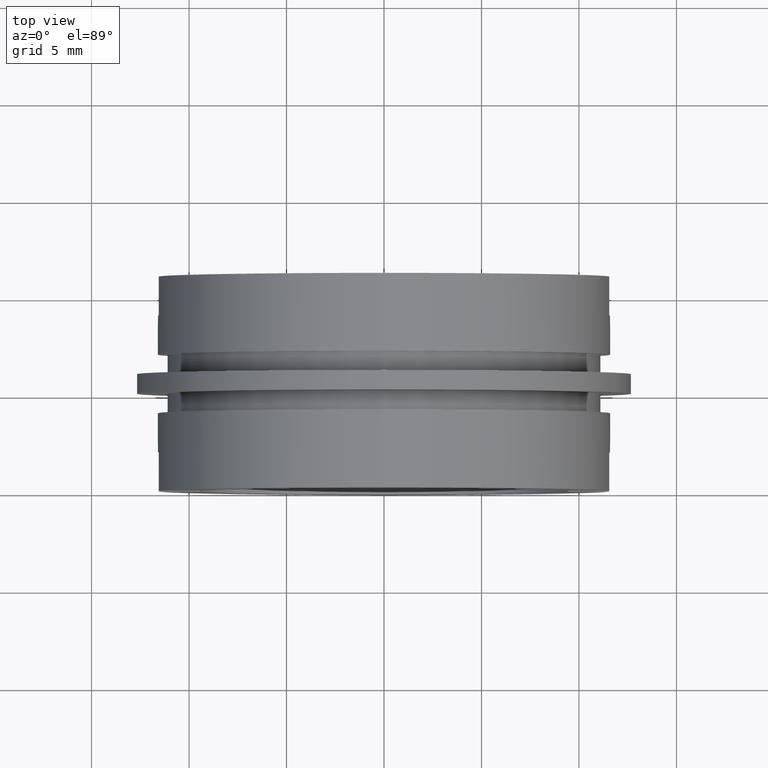
[diagram: clean part render]
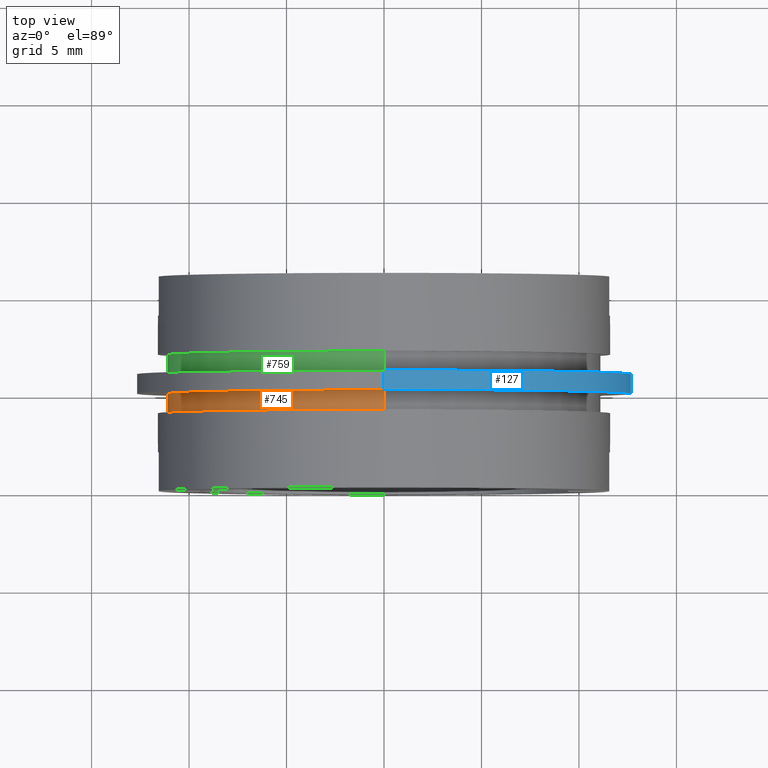
[diagram: same view with three faces highlighted in distinct colors, each labeled with its STEP entity id]
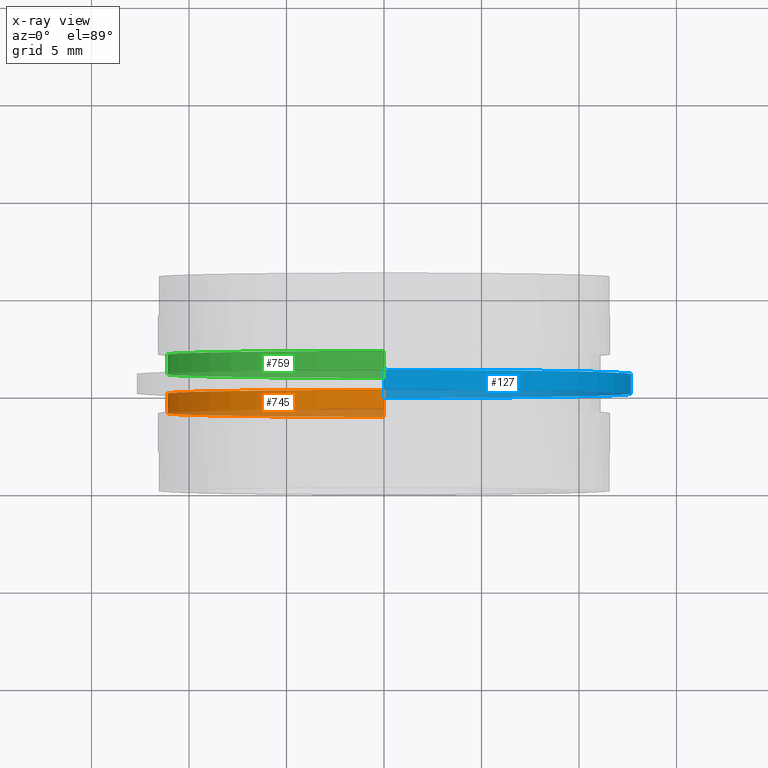
[diagram: x-ray of the same camera — body ghosted, the three highlighted faces saturated]
A machine part, top view with three faces highlighted in distinct colors.
The next image is the same camera in x-ray (body ghosted, the three faces saturated) — at least one of them is partly hidden behind the body in this view.
Their STEP definitions:

[orange] entity #745 — the highlighted cylindrical surface (partial cylindrical patch) has radius 11.1 mm, axis along (-0, 1, -0).
#35 = AXIS2_PLACEMENT_3D ( 'NONE', #533, #1051, #438 ) ;
#74 = EDGE_CURVE ( 'NONE', #806, #981, #578, .T. ) ;
#161 = CARTESIAN_POINT ( 'NONE',  ( 1.359357947053562000E-015, 22.67749945107591400, -11.09999999999999800 ) ) ;
#167 = DIRECTION ( 'NONE',  ( -0.0000000000000000000, 1.000000000000000000, -0.0000000000000000000 ) ) ;
#285 = CARTESIAN_POINT ( 'NONE',  ( 0.0000000000000000000, 5.000000000000000900, 11.09999999999999800 ) ) ;
#294 = CYLINDRICAL_SURFACE ( 'NONE', #925, 11.09999999999999800 ) ;
#297 = ORIENTED_EDGE ( 'NONE', *, *, #308, .T. ) ;
#308 = EDGE_CURVE ( 'NONE', #854, #567, #1142, .T. ) ;
#333 = CARTESIAN_POINT ( 'NONE',  ( 0.0000000000000000000, 4.000000000000000000, 11.09999999999999800 ) ) ;
#337 = VECTOR ( 'NONE', #346, 1000.000000000000000 ) ;
#346 = DIRECTION ( 'NONE',  ( -0.0000000000000000000, 1.000000000000000000, -0.0000000000000000000 ) ) ;
#434 = CARTESIAN_POINT ( 'NONE',  ( 0.0000000000000000000, 4.000000000000000000, 0.0000000000000000000 ) ) ;
#438 = DIRECTION ( 'NONE',  ( 0.0000000000000000000, 0.0000000000000000000, 1.000000000000000000 ) ) ;
#439 = CIRCLE ( 'NONE', #35, 11.09999999999999800 ) ;
#453 = ORIENTED_EDGE ( 'NONE', *, *, #74, .F. ) ;
#484 = CARTESIAN_POINT ( 'NONE',  ( 0.0000000000000000000, 22.67749945107591400, 11.09999999999999800 ) ) ;
#500 = CARTESIAN_POINT ( 'NONE',  ( 1.359357947053562000E-015, 4.000000000000000000, -11.09999999999999800 ) ) ;
#508 = DIRECTION ( 'NONE',  ( 0.0000000000000000000, 0.0000000000000000000, 1.000000000000000000 ) ) ;
#533 = CARTESIAN_POINT ( 'NONE',  ( 0.0000000000000000000, 5.000000000000000900, 0.0000000000000000000 ) ) ;
#566 = ORIENTED_EDGE ( 'NONE', *, *, #890, .T. ) ;
#567 = VERTEX_POINT ( 'NONE', #285 ) ;
#578 = LINE ( 'NONE', #161, #337 ) ;
#599 = EDGE_CURVE ( 'NONE', #981, #567, #439, .T. ) ;
#601 = CARTESIAN_POINT ( 'NONE',  ( 0.0000000000000000000, 22.67749945107591400, 0.0000000000000000000 ) ) ;
#657 = CIRCLE ( 'NONE', #850, 11.09999999999999800 ) ;
#733 = VECTOR ( 'NONE', #1017, 1000.000000000000000 ) ;
#745 = ADVANCED_FACE ( 'NONE', ( #1002 ), #294, .T. ) ;
#806 = VERTEX_POINT ( 'NONE', #500 ) ;
#850 = AXIS2_PLACEMENT_3D ( 'NONE', #434, #167, #873 ) ;
#854 = VERTEX_POINT ( 'NONE', #333 ) ;
#863 = DIRECTION ( 'NONE',  ( -0.0000000000000000000, 1.000000000000000000, -0.0000000000000000000 ) ) ;
#873 = DIRECTION ( 'NONE',  ( 0.0000000000000000000, 0.0000000000000000000, 1.000000000000000000 ) ) ;
#890 = EDGE_CURVE ( 'NONE', #806, #854, #657, .T. ) ;
#925 = AXIS2_PLACEMENT_3D ( 'NONE', #601, #863, #508 ) ;
#959 = CARTESIAN_POINT ( 'NONE',  ( 1.359357947053562000E-015, 5.000000000000000900, -11.09999999999999800 ) ) ;
#975 = EDGE_LOOP ( 'NONE', ( #453, #566, #297, #1131 ) ) ;
#981 = VERTEX_POINT ( 'NONE', #959 ) ;
#1002 = FACE_OUTER_BOUND ( 'NONE', #975, .T. ) ;
#1017 = DIRECTION ( 'NONE',  ( -0.0000000000000000000, 1.000000000000000000, -0.0000000000000000000 ) ) ;
#1051 = DIRECTION ( 'NONE',  ( -0.0000000000000000000, 1.000000000000000000, -0.0000000000000000000 ) ) ;
#1131 = ORIENTED_EDGE ( 'NONE', *, *, #599, .F. ) ;
#1142 = LINE ( 'NONE', #484, #733 ) ;

[blue] entity #127 — the highlighted cylindrical surface (partial cylindrical patch) has radius 12.7 mm, axis along (-0, 1, -0).
#14 = AXIS2_PLACEMENT_3D ( 'NONE', #586, #1104, #495 ) ;
#48 = VERTEX_POINT ( 'NONE', #878 ) ;
#80 = LINE ( 'NONE', #713, #763 ) ;
#127 = ADVANCED_FACE ( 'NONE', ( #555 ), #989, .T. ) ;
#278 = ORIENTED_EDGE ( 'NONE', *, *, #379, .T. ) ;
#322 = CIRCLE ( 'NONE', #14, 12.69999999999999900 ) ;
#328 = CARTESIAN_POINT ( 'NONE',  ( 0.0000000000000000000, 5.000000000000000900, 12.69999999999999900 ) ) ;
#379 = EDGE_CURVE ( 'NONE', #48, #580, #881, .T. ) ;
#407 = CARTESIAN_POINT ( 'NONE',  ( 0.0000000000000000000, 5.999999999999998200, 12.69999999999999900 ) ) ;
#447 = DIRECTION ( 'NONE',  ( 0.0000000000000000000, 0.0000000000000000000, 1.000000000000000000 ) ) ;
#455 = DIRECTION ( 'NONE',  ( -0.0000000000000000000, 1.000000000000000000, -0.0000000000000000000 ) ) ;
#456 = EDGE_CURVE ( 'NONE', #1071, #580, #943, .T. ) ;
#466 = DIRECTION ( 'NONE',  ( 0.0000000000000000000, 0.0000000000000000000, 1.000000000000000000 ) ) ;
#495 = DIRECTION ( 'NONE',  ( 0.0000000000000000000, 0.0000000000000000000, 1.000000000000000000 ) ) ;
#555 = FACE_OUTER_BOUND ( 'NONE', #658, .T. ) ;
#562 = CARTESIAN_POINT ( 'NONE',  ( 0.0000000000000000000, 5.999999999999998200, 0.0000000000000000000 ) ) ;
#575 = EDGE_CURVE ( 'NONE', #994, #1071, #80, .T. ) ;
#580 = VERTEX_POINT ( 'NONE', #971 ) ;
#586 = CARTESIAN_POINT ( 'NONE',  ( 0.0000000000000000000, 5.000000000000000900, 0.0000000000000000000 ) ) ;
#609 = ORIENTED_EDGE ( 'NONE', *, *, #797, .T. ) ;
#627 = DIRECTION ( 'NONE',  ( -0.0000000000000000000, 1.000000000000000000, -0.0000000000000000000 ) ) ;
#658 = EDGE_LOOP ( 'NONE', ( #609, #278, #676, #963 ) ) ;
#663 = AXIS2_PLACEMENT_3D ( 'NONE', #977, #455, #447 ) ;
#676 = ORIENTED_EDGE ( 'NONE', *, *, #456, .F. ) ;
#713 = CARTESIAN_POINT ( 'NONE',  ( 0.0000000000000000000, 22.67749945107591400, 12.69999999999999900 ) ) ;
#763 = VECTOR ( 'NONE', #627, 1000.000000000000000 ) ;
#797 = EDGE_CURVE ( 'NONE', #994, #48, #322, .T. ) ;
#820 = AXIS2_PLACEMENT_3D ( 'NONE', #562, #1075, #466 ) ;
#878 = CARTESIAN_POINT ( 'NONE',  ( 1.555301434917138400E-015, 5.000000000000000900, -12.69999999999999900 ) ) ;
#881 = LINE ( 'NONE', #918, #1080 ) ;
#918 = CARTESIAN_POINT ( 'NONE',  ( 1.555301434917138400E-015, 22.67749945107591400, -12.69999999999999900 ) ) ;
#943 = CIRCLE ( 'NONE', #820, 12.69999999999999900 ) ;
#963 = ORIENTED_EDGE ( 'NONE', *, *, #575, .F. ) ;
#971 = CARTESIAN_POINT ( 'NONE',  ( 1.555301434917138400E-015, 5.999999999999998200, -12.69999999999999900 ) ) ;
#977 = CARTESIAN_POINT ( 'NONE',  ( 0.0000000000000000000, 22.67749945107591400, 0.0000000000000000000 ) ) ;
#989 = CYLINDRICAL_SURFACE ( 'NONE', #663, 12.69999999999999900 ) ;
#994 = VERTEX_POINT ( 'NONE', #328 ) ;
#1071 = VERTEX_POINT ( 'NONE', #407 ) ;
#1075 = DIRECTION ( 'NONE',  ( -0.0000000000000000000, 1.000000000000000000, -0.0000000000000000000 ) ) ;
#1080 = VECTOR ( 'NONE', #1092, 1000.000000000000000 ) ;
#1092 = DIRECTION ( 'NONE',  ( -0.0000000000000000000, 1.000000000000000000, -0.0000000000000000000 ) ) ;
#1104 = DIRECTION ( 'NONE',  ( -0.0000000000000000000, 1.000000000000000000, -0.0000000000000000000 ) ) ;

[green] entity #759 — the highlighted cylindrical surface (partial cylindrical patch) has radius 11.1 mm, axis along (-0, 1, -0).
#47 = ORIENTED_EDGE ( 'NONE', *, *, #251, .F. ) ;
#67 = DIRECTION ( 'NONE',  ( -0.0000000000000000000, 1.000000000000000000, -0.0000000000000000000 ) ) ;
#75 = DIRECTION ( 'NONE',  ( 0.0000000000000000000, 0.0000000000000000000, 1.000000000000000000 ) ) ;
#84 = AXIS2_PLACEMENT_3D ( 'NONE', #320, #502, #410 ) ;
#87 = CARTESIAN_POINT ( 'NONE',  ( 0.0000000000000000000, 5.999999999999998200, 11.09999999999999800 ) ) ;
#91 = EDGE_CURVE ( 'NONE', #611, #286, #1043, .T. ) ;
#92 = VECTOR ( 'NONE', #67, 1000.000000000000000 ) ;
#95 = VERTEX_POINT ( 'NONE', #87 ) ;
#106 = AXIS2_PLACEMENT_3D ( 'NONE', #212, #756, #124 ) ;
#123 = AXIS2_PLACEMENT_3D ( 'NONE', #430, #1048, #75 ) ;
#124 = DIRECTION ( 'NONE',  ( 0.0000000000000000000, 0.0000000000000000000, 1.000000000000000000 ) ) ;
#194 = ORIENTED_EDGE ( 'NONE', *, *, #730, .T. ) ;
#212 = CARTESIAN_POINT ( 'NONE',  ( 0.0000000000000000000, 5.999999999999998200, 0.0000000000000000000 ) ) ;
#223 = LINE ( 'NONE', #671, #905 ) ;
#226 = CIRCLE ( 'NONE', #106, 11.09999999999999800 ) ;
#237 = CARTESIAN_POINT ( 'NONE',  ( 1.359357947053562000E-015, 5.999999999999998200, -11.09999999999999800 ) ) ;
#251 = EDGE_CURVE ( 'NONE', #827, #611, #223, .T. ) ;
#269 = CYLINDRICAL_SURFACE ( 'NONE', #84, 11.09999999999999800 ) ;
#286 = VERTEX_POINT ( 'NONE', #1102 ) ;
#288 = ORIENTED_EDGE ( 'NONE', *, *, #325, .T. ) ;
#320 = CARTESIAN_POINT ( 'NONE',  ( 0.0000000000000000000, 22.67749945107591400, 0.0000000000000000000 ) ) ;
#325 = EDGE_CURVE ( 'NONE', #827, #95, #226, .T. ) ;
#381 = ORIENTED_EDGE ( 'NONE', *, *, #91, .F. ) ;
#410 = DIRECTION ( 'NONE',  ( 0.0000000000000000000, 0.0000000000000000000, 1.000000000000000000 ) ) ;
#430 = CARTESIAN_POINT ( 'NONE',  ( 0.0000000000000000000, 6.999999999999999100, 0.0000000000000000000 ) ) ;
#502 = DIRECTION ( 'NONE',  ( -0.0000000000000000000, 1.000000000000000000, -0.0000000000000000000 ) ) ;
#611 = VERTEX_POINT ( 'NONE', #620 ) ;
#620 = CARTESIAN_POINT ( 'NONE',  ( 1.359357947053562000E-015, 6.999999999999999100, -11.09999999999999800 ) ) ;
#671 = CARTESIAN_POINT ( 'NONE',  ( 1.359357947053562000E-015, 22.67749945107591400, -11.09999999999999800 ) ) ;
#678 = DIRECTION ( 'NONE',  ( -0.0000000000000000000, 1.000000000000000000, -0.0000000000000000000 ) ) ;
#684 = CARTESIAN_POINT ( 'NONE',  ( 0.0000000000000000000, 22.67749945107591400, 11.09999999999999800 ) ) ;
#730 = EDGE_CURVE ( 'NONE', #95, #286, #805, .T. ) ;
#756 = DIRECTION ( 'NONE',  ( -0.0000000000000000000, 1.000000000000000000, -0.0000000000000000000 ) ) ;
#759 = ADVANCED_FACE ( 'NONE', ( #972 ), #269, .T. ) ;
#805 = LINE ( 'NONE', #684, #92 ) ;
#827 = VERTEX_POINT ( 'NONE', #237 ) ;
#905 = VECTOR ( 'NONE', #678, 1000.000000000000000 ) ;
#972 = FACE_OUTER_BOUND ( 'NONE', #1107, .T. ) ;
#1043 = CIRCLE ( 'NONE', #123, 11.09999999999999800 ) ;
#1048 = DIRECTION ( 'NONE',  ( -0.0000000000000000000, 1.000000000000000000, -0.0000000000000000000 ) ) ;
#1102 = CARTESIAN_POINT ( 'NONE',  ( 0.0000000000000000000, 6.999999999999999100, 11.09999999999999800 ) ) ;
#1107 = EDGE_LOOP ( 'NONE', ( #47, #288, #194, #381 ) ) ;